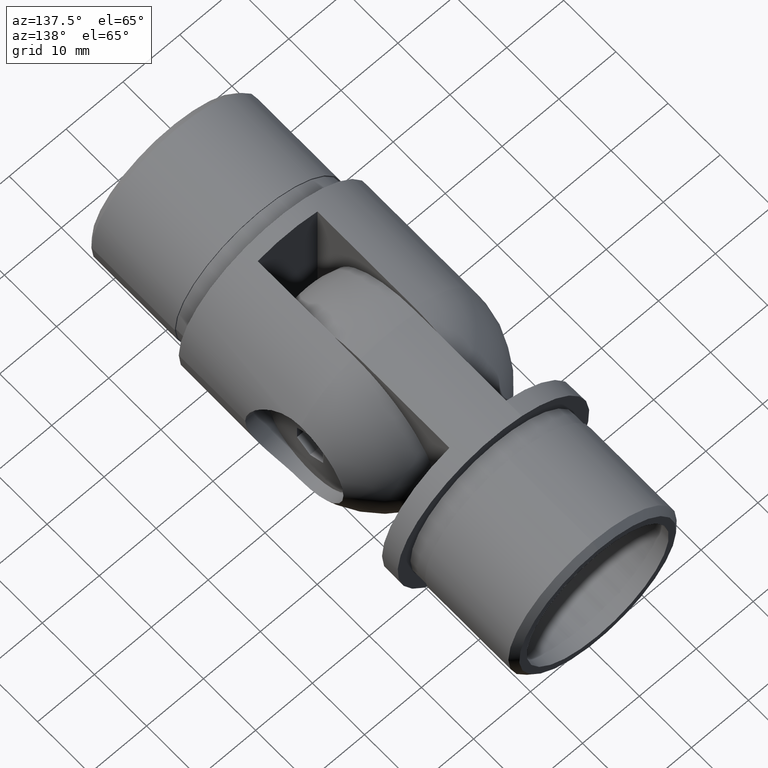
[diagram: clean part render]
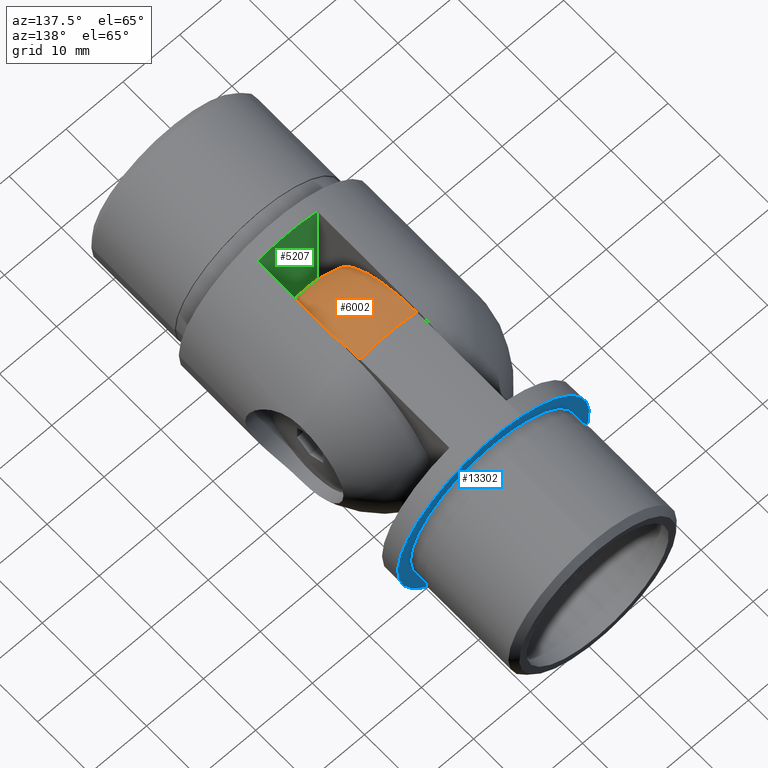
[diagram: same view with three faces highlighted in distinct colors, each labeled with its STEP entity id]
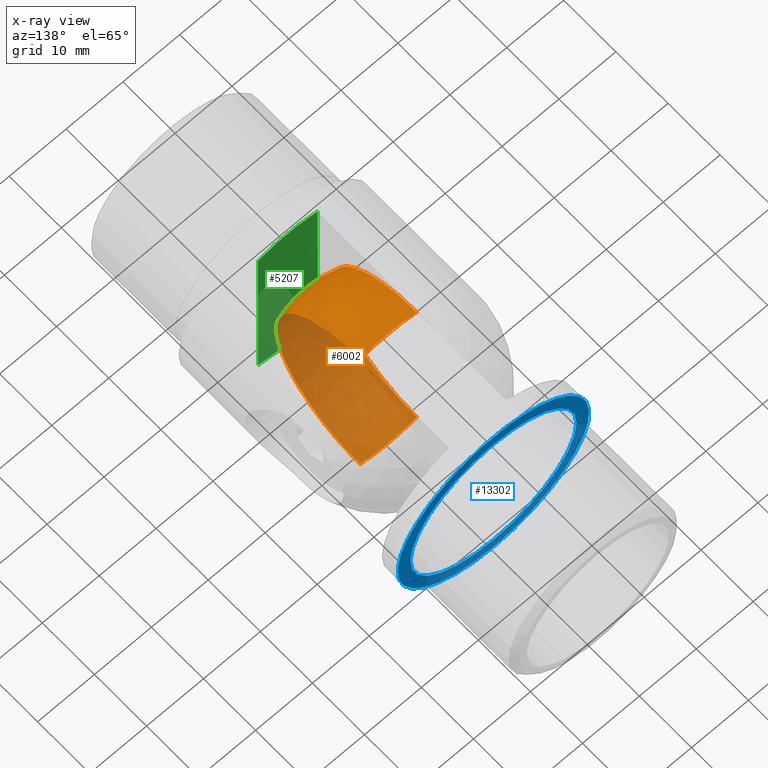
[diagram: x-ray of the same camera — body ghosted, the three highlighted faces saturated]
A machine part, auxiliary view with three faces highlighted in distinct colors.
The next image is the same camera in x-ray (body ghosted, the three faces saturated) — at least one of them is partly hidden behind the body in this view.
Their STEP definitions:

[orange] entity #6002 — the highlighted spherical surface has radius 16.85 mm.
#478 = CIRCLE ( 'NONE', #658, 16.09106895144010700 ) ;
#658 = AXIS2_PLACEMENT_3D ( 'NONE', #5244, #11133, #7672 ) ;
#2425 = AXIS2_PLACEMENT_3D ( 'NONE', #8339, #9482, #9533 ) ;
#3300 = DIRECTION ( 'NONE',  ( 0.0000000000000000000, 2.059018962583747500E-016, -1.000000000000000000 ) ) ;
#3555 = VERTEX_POINT ( 'NONE', #11648 ) ;
#4268 = CIRCLE ( 'NONE', #12177, 16.84999999999999800 ) ;
#4394 = SPHERICAL_SURFACE ( 'NONE', #9356, 16.84999999999999800 ) ;
#4527 = CIRCLE ( 'NONE', #2425, 16.84999999999999800 ) ;
#5244 = CARTESIAN_POINT ( 'NONE',  ( 4.999999999999999100, 20.15000000000000600, 3.469446951953614200E-015 ) ) ;
#5570 = VERTEX_POINT ( 'NONE', #11743 ) ;
#5769 = ORIENTED_EDGE ( 'NONE', *, *, #11312, .F. ) ;
#6002 = ADVANCED_FACE ( 'NONE', ( #13114 ), #4394, .T. ) ;
#7266 = CARTESIAN_POINT ( 'NONE',  ( -5.000000000000000000, 20.15000000000000600, 16.09106895144010700 ) ) ;
#7379 = ORIENTED_EDGE ( 'NONE', *, *, #12754, .T. ) ;
#7567 = CARTESIAN_POINT ( 'NONE',  ( 4.999999999999999100, 20.15000000000000600, 16.09106895144011100 ) ) ;
#7672 = DIRECTION ( 'NONE',  ( 0.0000000000000000000, 0.0000000000000000000, 1.000000000000000000 ) ) ;
#7685 = CARTESIAN_POINT ( 'NONE',  ( 0.0000000000000000000, 20.15000000000000600, -3.469446951953614200E-015 ) ) ;
#8339 = CARTESIAN_POINT ( 'NONE',  ( 0.0000000000000000000, 20.15000000000000600, -3.469446951953614200E-015 ) ) ;
#8865 = EDGE_CURVE ( 'NONE', #12755, #14101, #4527, .T. ) ;
#8970 = DIRECTION ( 'NONE',  ( 0.0000000000000000000, -1.000000000000000000, -1.224646799147353200E-016 ) ) ;
#9080 = CARTESIAN_POINT ( 'NONE',  ( 0.0000000000000000000, 20.15000000000000600, 1.040834085586084300E-014 ) ) ;
#9270 = DIRECTION ( 'NONE',  ( 0.0000000000000000000, 0.0000000000000000000, 1.000000000000000000 ) ) ;
#9318 = DIRECTION ( 'NONE',  ( -0.0000000000000000000, 1.000000000000000000, 0.0000000000000000000 ) ) ;
#9356 = AXIS2_PLACEMENT_3D ( 'NONE', #7685, #9318, #9270 ) ;
#9482 = DIRECTION ( 'NONE',  ( 0.0000000000000000000, 1.000000000000000000, 0.0000000000000000000 ) ) ;
#9533 = DIRECTION ( 'NONE',  ( 0.0000000000000000000, 0.0000000000000000000, 1.000000000000000000 ) ) ;
#9923 = CARTESIAN_POINT ( 'NONE',  ( -5.000000000000000000, 20.15000000000000600, 3.469446951953614200E-015 ) ) ;
#11017 = CIRCLE ( 'NONE', #12992, 16.09106895144010400 ) ;
#11063 = DIRECTION ( 'NONE',  ( -1.000000000000000000, -0.0000000000000000000, 0.0000000000000000000 ) ) ;
#11133 = DIRECTION ( 'NONE',  ( -1.000000000000000000, -0.0000000000000000000, 0.0000000000000000000 ) ) ;
#11312 = EDGE_CURVE ( 'NONE', #3555, #5570, #4268, .T. ) ;
#11648 = CARTESIAN_POINT ( 'NONE',  ( -5.000000000000000000, 20.15000000000000900, -16.09106895144010000 ) ) ;
#11743 = CARTESIAN_POINT ( 'NONE',  ( 4.999999999999999100, 20.15000000000000900, -16.09106895144010400 ) ) ;
#12177 = AXIS2_PLACEMENT_3D ( 'NONE', #9080, #8970, #3300 ) ;
#12472 = ORIENTED_EDGE ( 'NONE', *, *, #14778, .F. ) ;
#12638 = ORIENTED_EDGE ( 'NONE', *, *, #8865, .T. ) ;
#12754 = EDGE_CURVE ( 'NONE', #14101, #5570, #478, .T. ) ;
#12755 = VERTEX_POINT ( 'NONE', #7266 ) ;
#12992 = AXIS2_PLACEMENT_3D ( 'NONE', #9923, #11063, #14679 ) ;
#13114 = FACE_OUTER_BOUND ( 'NONE', #14525, .T. ) ;
#14101 = VERTEX_POINT ( 'NONE', #7567 ) ;
#14525 = EDGE_LOOP ( 'NONE', ( #12638, #7379, #5769, #12472 ) ) ;
#14679 = DIRECTION ( 'NONE',  ( 0.0000000000000000000, 0.0000000000000000000, 1.000000000000000000 ) ) ;
#14778 = EDGE_CURVE ( 'NONE', #12755, #3555, #11017, .T. ) ;

[blue] entity #13302 — the highlighted planar face has unit normal (-0, -1, 0).
#381 = ORIENTED_EDGE ( 'NONE', *, *, #4757, .F. ) ;
#767 = CARTESIAN_POINT ( 'NONE',  ( 0.0000000000000000000, 0.0000000000000000000, 0.0000000000000000000 ) ) ;
#1217 = EDGE_LOOP ( 'NONE', ( #12376 ) ) ;
#1740 = VERTEX_POINT ( 'NONE', #13385 ) ;
#2053 = DIRECTION ( 'NONE',  ( 0.0000000000000000000, 0.0000000000000000000, 1.000000000000000000 ) ) ;
#3439 = EDGE_CURVE ( 'NONE', #8413, #8413, #8132, .T. ) ;
#3979 = CARTESIAN_POINT ( 'NONE',  ( 0.0000000000000000000, 0.0000000000000000000, 14.59999999999999800 ) ) ;
#4181 = FACE_BOUND ( 'NONE', #1217, .T. ) ;
#4739 = FACE_OUTER_BOUND ( 'NONE', #11716, .T. ) ;
#4757 = EDGE_CURVE ( 'NONE', #1740, #1740, #8836, .T. ) ;
#6605 = CARTESIAN_POINT ( 'NONE',  ( 0.0000000000000000000, 0.0000000000000000000, 0.0000000000000000000 ) ) ;
#8132 = CIRCLE ( 'NONE', #11471, 14.59999999999999800 ) ;
#8413 = VERTEX_POINT ( 'NONE', #3979 ) ;
#8836 = CIRCLE ( 'NONE', #9450, 16.85000000000000100 ) ;
#8930 = DIRECTION ( 'NONE',  ( 0.0000000000000000000, 1.000000000000000000, 0.0000000000000000000 ) ) ;
#9088 = DIRECTION ( 'NONE',  ( 0.0000000000000000000, -0.0000000000000000000, 1.000000000000000000 ) ) ;
#9164 = DIRECTION ( 'NONE',  ( 0.0000000000000000000, 1.000000000000000000, 0.0000000000000000000 ) ) ;
#9450 = AXIS2_PLACEMENT_3D ( 'NONE', #6605, #9164, #10114 ) ;
#10114 = DIRECTION ( 'NONE',  ( 0.0000000000000000000, 0.0000000000000000000, 1.000000000000000000 ) ) ;
#10192 = PLANE ( 'NONE',  #10884 ) ;
#10884 = AXIS2_PLACEMENT_3D ( 'NONE', #15004, #8930, #9088 ) ;
#11471 = AXIS2_PLACEMENT_3D ( 'NONE', #767, #12693, #2053 ) ;
#11716 = EDGE_LOOP ( 'NONE', ( #381 ) ) ;
#12376 = ORIENTED_EDGE ( 'NONE', *, *, #3439, .F. ) ;
#12693 = DIRECTION ( 'NONE',  ( -0.0000000000000000000, -1.000000000000000000, -0.0000000000000000000 ) ) ;
#13302 = ADVANCED_FACE ( 'NONE', ( #4181, #4739 ), #10192, .F. ) ;
#13385 = CARTESIAN_POINT ( 'NONE',  ( 0.0000000000000000000, 0.0000000000000000000, 16.85000000000000100 ) ) ;
#15004 = CARTESIAN_POINT ( 'NONE',  ( 0.0000000000000000000, 0.0000000000000000000, 0.0000000000000000000 ) ) ;

[green] entity #5207 — the highlighted planar face has unit normal (-0, -1, 0).
#429 = CARTESIAN_POINT ( 'NONE',  ( 5.250000000000005300, 2.499999999999998700, 16.01124604770034000 ) ) ;
#494 = VECTOR ( 'NONE', #1755, 1000.000000000000000 ) ;
#987 = LINE ( 'NONE', #3226, #7097 ) ;
#1755 = DIRECTION ( 'NONE',  ( -0.0000000000000000000, -0.0000000000000000000, 1.000000000000000000 ) ) ;
#1795 = CIRCLE ( 'NONE', #2910, 16.84999999999999800 ) ;
#2910 = AXIS2_PLACEMENT_3D ( 'NONE', #14015, #4459, #5682 ) ;
#2921 = FACE_OUTER_BOUND ( 'NONE', #13309, .T. ) ;
#3111 = CARTESIAN_POINT ( 'NONE',  ( -5.249999999999995600, 2.500000000000000900, -16.01124604770034300 ) ) ;
#3171 = DIRECTION ( 'NONE',  ( -0.0000000000000000000, -0.0000000000000000000, 1.000000000000000000 ) ) ;
#3226 = CARTESIAN_POINT ( 'NONE',  ( -5.249999999999995600, 2.500000000000000900, -16.85000000000000100 ) ) ;
#3892 = ORIENTED_EDGE ( 'NONE', *, *, #11151, .T. ) ;
#4080 = CARTESIAN_POINT ( 'NONE',  ( 5.250000000000005300, 2.499999999999998700, -16.85000000000000100 ) ) ;
#4171 = CARTESIAN_POINT ( 'NONE',  ( -1.698651438711652400E-016, 2.500000000000000000, 0.0000000000000000000 ) ) ;
#4459 = DIRECTION ( 'NONE',  ( 2.065146995210485200E-016, 1.000000000000000000, 0.0000000000000000000 ) ) ;
#4544 = CARTESIAN_POINT ( 'NONE',  ( -5.249999999999995600, 2.500000000000000900, -16.85000000000000100 ) ) ;
#4595 = DIRECTION ( 'NONE',  ( -2.065146995210485200E-016, -1.000000000000000000, 0.0000000000000000000 ) ) ;
#4829 = EDGE_CURVE ( 'NONE', #7336, #9884, #1795, .T. ) ;
#5207 = ADVANCED_FACE ( 'NONE', ( #2921 ), #10591, .F. ) ;
#5682 = DIRECTION ( 'NONE',  ( 1.000000000000000000, -2.059018962583747500E-016, -3.552713678800500900E-015 ) ) ;
#5982 = ORIENTED_EDGE ( 'NONE', *, *, #4829, .T. ) ;
#6530 = DIRECTION ( 'NONE',  ( 2.065146995210485200E-016, 1.000000000000000000, 0.0000000000000000000 ) ) ;
#6533 = AXIS2_PLACEMENT_3D ( 'NONE', #4171, #6530, #7597 ) ;
#7097 = VECTOR ( 'NONE', #3171, 1000.000000000000000 ) ;
#7336 = VERTEX_POINT ( 'NONE', #7725 ) ;
#7597 = DIRECTION ( 'NONE',  ( 1.000000000000000000, -2.059018962583747500E-016, 0.0000000000000000000 ) ) ;
#7725 = CARTESIAN_POINT ( 'NONE',  ( -5.249999999999995600, 2.500000000000000900, 16.01124604770034000 ) ) ;
#8064 = DIRECTION ( 'NONE',  ( 1.000000000000000000, -2.065146995210485200E-016, 0.0000000000000000000 ) ) ;
#8276 = LINE ( 'NONE', #4080, #494 ) ;
#9036 = VERTEX_POINT ( 'NONE', #3111 ) ;
#9884 = VERTEX_POINT ( 'NONE', #429 ) ;
#10450 = EDGE_CURVE ( 'NONE', #9036, #7336, #987, .T. ) ;
#10591 = PLANE ( 'NONE',  #15360 ) ;
#11151 = EDGE_CURVE ( 'NONE', #11908, #9036, #11906, .T. ) ;
#11403 = ORIENTED_EDGE ( 'NONE', *, *, #12048, .F. ) ;
#11906 = CIRCLE ( 'NONE', #6533, 16.84999999999999800 ) ;
#11908 = VERTEX_POINT ( 'NONE', #13238 ) ;
#12048 = EDGE_CURVE ( 'NONE', #11908, #9884, #8276, .T. ) ;
#13238 = CARTESIAN_POINT ( 'NONE',  ( 5.250000000000005300, 2.499999999999998700, -16.01124604770034000 ) ) ;
#13309 = EDGE_LOOP ( 'NONE', ( #11403, #3892, #14742, #5982 ) ) ;
#14015 = CARTESIAN_POINT ( 'NONE',  ( -1.698651438711652400E-016, 2.500000000000000000, 0.0000000000000000000 ) ) ;
#14742 = ORIENTED_EDGE ( 'NONE', *, *, #10450, .T. ) ;
#15360 = AXIS2_PLACEMENT_3D ( 'NONE', #4544, #4595, #8064 ) ;